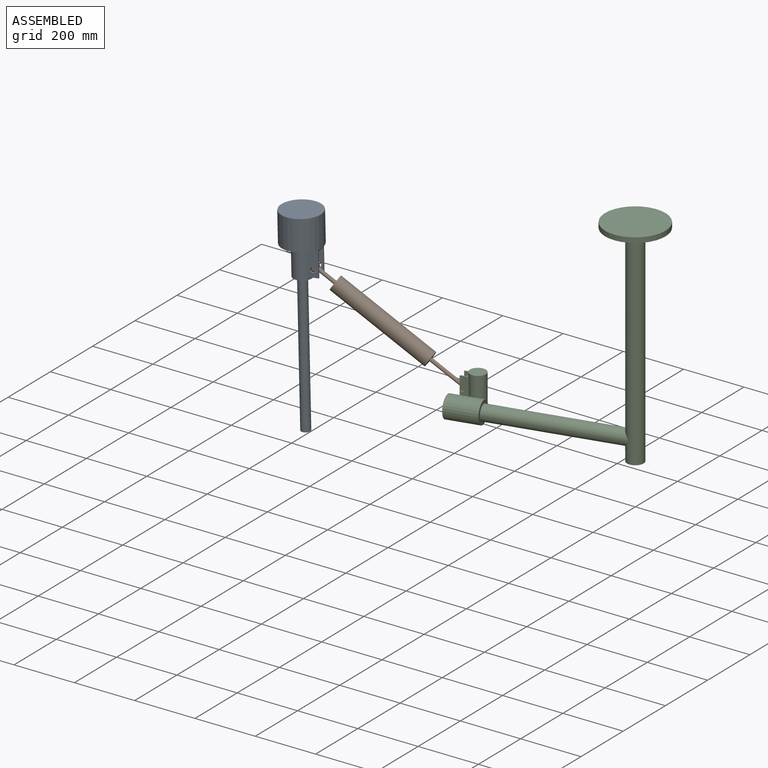
[diagram: assembled view]
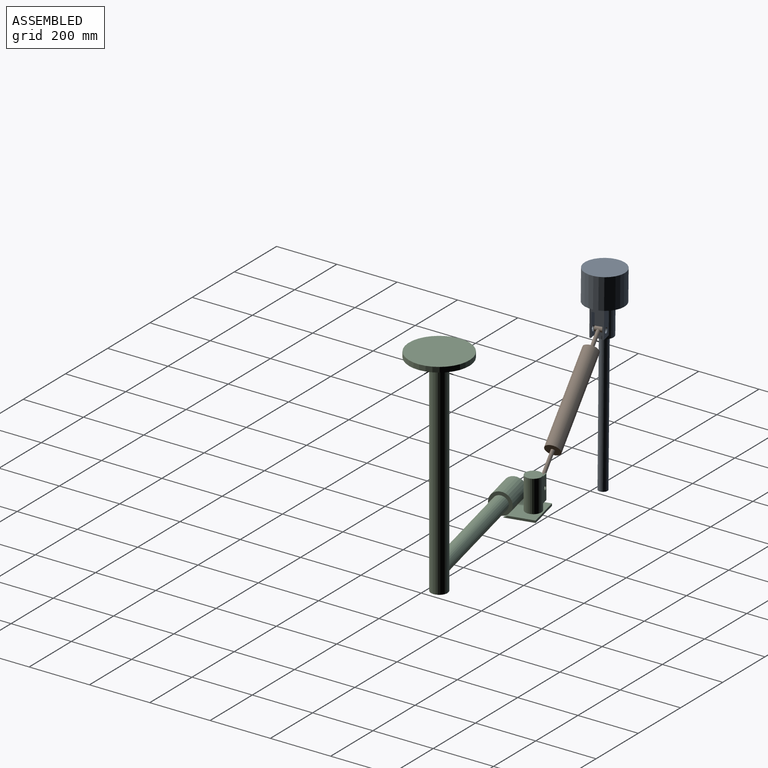
[diagram: assembled view, second angle]
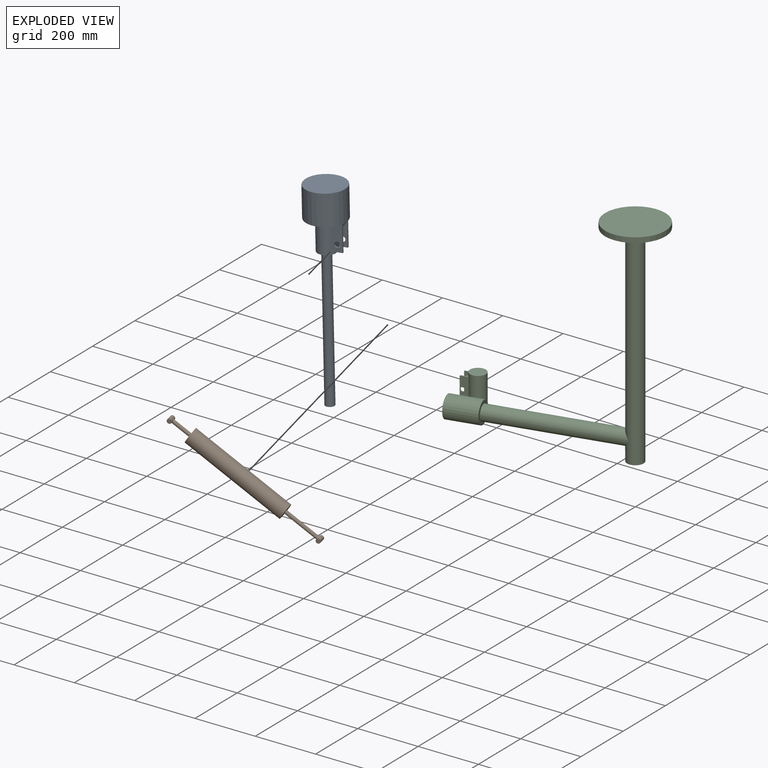
[diagram: exploded view]
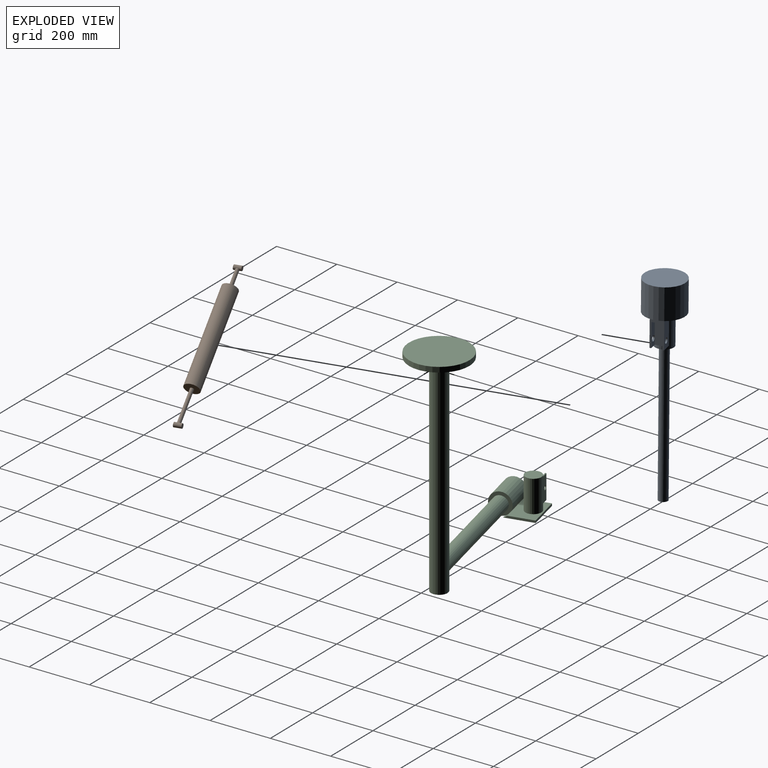
[diagram: exploded view, second angle]
ASSEMBLY  parts=3 mates=2
PART A: 17 faces, bbox 130x130x660 mm
  f0: plane 42.74x34.87mm, normal (0,0,-1), area 408.2mm2, adj f4,f8,f9,f10,f11,f12,f14
  f1: cylinder r=65mm len=130mm, axis (0,0,1), area 40840.7mm2, adj f2,f3
  f2: plane 130x130mm, normal (0,0,-1), area 9219.2mm2, adj f1,f4,f8,f9,f10
  f3: plane 130x130mm, normal (0,0,1), area 13273.2mm2, adj f1
  f4: cylinder r=30mm len=100mm, axis (0,0,1), area 14606.6mm2, adj f0,f2,f5,f8,f9
  f5: plane 60x60mm, normal (0,0,-1), area 2120.6mm2, adj f4,f6
  f6: cylinder r=15mm len=460mm, axis (0,0,1), area 43354mm2, adj f5,f7
  f7: plane 30x30mm, normal (0,0,-1), area 706.9mm2, adj f6
  f8: plane 89.2x34.87mm, normal (-1,0,0), area 2861.3mm2, adj f0,f2,f4,f10,f16
  f9: plane 89.2x34.87mm, normal (1,0,0), area 2861.3mm2, adj f0,f2,f4,f10,f15
  f10: plane 89.2x42.74mm, normal (0,-1,0), area 1268.6mm2, adj f0,f2,f8,f9,f11,f12,f13
  f11: plane 77.7x25mm, normal (1,0,0), area 1693.6mm2, adj f0,f10,f13,f14,f16
  f12: plane 77.7x25mm, normal (-1,0,0), area 1693.6mm2, adj f0,f10,f13,f14,f15
  f13: plane 32.74x25mm, normal (0,0,-1), area 818.5mm2, adj f10,f11,f12,f14
  f14: plane 77.7x32.74mm, normal (0,-1,0), area 2543.7mm2, adj f0,f11,f12,f13
  f15: cylinder r=8.9mm len=17.8mm, axis (1,0,0), area 279.6mm2, adj f9,f12
  f16: cylinder r=8.9mm len=17.8mm, axis (1,0,0), area 279.6mm2, adj f8,f11
PART B: 11 faces, bbox 535x50x50 mm
  f0: cylinder r=5.93mm len=115.41mm, axis (-1,0,0), area 4245.3mm2, adj f1,f5
  f1: cylinder r=7.5mm len=25mm, axis (0,1,0), area 1055.7mm2, adj f0,f2,f3
  f2: plane 15x15mm, normal (0,-1,0), area 176.7mm2, adj f1
  f3: plane 15x15mm, normal (0,1,0), area 176.7mm2, adj f1
  f4: cylinder r=25mm len=332mm, axis (-1,0,0), area 52150.4mm2, adj f5,f6
  f5: plane 50x50mm, normal (1,0,0), area 1852.9mm2, adj f0,f4
  f6: plane 50x50mm, normal (-1,0,0), area 1852.9mm2, adj f4,f10
  f7: plane 15x15mm, normal (0,1,0), area 176.7mm2, adj f9
  f8: plane 15x15mm, normal (0,-1,0), area 176.7mm2, adj f9
  f9: cylinder r=7.5mm len=25mm, axis (0,1,0), area 1055.7mm2, adj f7,f8,f10
  f10: cylinder r=5.93mm len=63.41mm, axis (-1,0,0), area 2306.6mm2, adj f6,f9
PART C: 29 faces, bbox 651x208.7x717 mm
  f0: plane 80x4mm, normal (-1,0,0), area 320mm2, adj f1,f21,f23,f25
  f1: plane 36.46x28.4mm, normal (0,0,1), area 296.6mm2, adj f0,f18,f20,f21,f22,f24,f25,f26
  f2: cylinder r=36.2mm len=106mm, axis (1,0,0), area 22655.8mm2, adj f10,f11,f14,f16
  f3: cylinder r=25mm len=433.55mm, axis (1,0,0), area 66709.8mm2, adj f7,f11
  f4: cylinder r=100mm len=200mm, axis (0,0,1), area 10681.4mm2, adj f5,f6
  f5: plane 200x200mm, normal (0,0,-1), area 29040.1mm2, adj f4,f7
  f6: plane 200x200mm, normal (0,0,1), area 31415.9mm2, adj f4
  f7: cylinder r=27.5mm len=700mm, axis (0,0,1), area 118658.8mm2, adj f3,f5,f8
  f8: plane 55x55mm, normal (0,0,-1), area 2375.8mm2, adj f7
  f9: cylinder r=25mm len=71mm, axis (1,0,0), area 11152.7mm2, adj f10,f12
  f10: plane 144.9x72.4mm, normal (-1,0,0), area 2803.6mm2, adj f2,f9,f14,f15,f16
  f11: plane 72.4x72.4mm, normal (1,0,0), area 2153.6mm2, adj f2,f3,f13
  f12: plane 50x50mm, normal (-1,0,0), area 1963.5mm2, adj f9
  f13: cylinder r=36.2mm len=13mm, axis (-1,0,0), area 178.4mm2, adj f11,f14,f16,f17
  f14: plane 119x83.87mm, normal (0,0,1), area 7762.2mm2, adj f2,f10,f13,f15,f17,f18
  f15: plane 119x7.32mm, normal (0,1,0), area 870.9mm2, adj f10,f14,f16,f17
  f16: plane 119x95.38mm, normal (0,0,-1), area 11350mm2, adj f2,f10,f13,f15,f17
  f17: plane 95.38x7.32mm, normal (1,0,0), area 650mm2, adj f13,f14,f15,f16
  f18: cylinder r=26.57mm len=106mm, axis (0,0,-1), area 14473.2mm2, adj f1,f14,f19,f20,f21,f23
  f19: plane 53.14x53.14mm, normal (0,0,1), area 2217.8mm2, adj f18
  f20: plane 80x28.4mm, normal (0,1,0), area 2122.9mm2, adj f1,f18,f22,f23,f28
  f21: plane 80x26.11mm, normal (0,-1,0), area 1939.7mm2, adj f0,f1,f18,f23,f27
  f22: plane 80x4mm, normal (-1,0,0), area 320mm2, adj f1,f20,f23,f24
  f23: plane 36.46x28.4mm, normal (0,0,-1), area 296.6mm2, adj f0,f18,f20,f21,f22,f24,f25,f26
  f24: plane 80x18.08mm, normal (0,-1,0), area 1297mm2, adj f1,f22,f23,f26,f28
  f25: plane 80x18.08mm, normal (0,1,0), area 1297mm2, adj f0,f1,f23,f26,f27
  f26: plane 80x28.46mm, normal (-1,0,0), area 2276.9mm2, adj f1,f23,f24,f25
  f27: cylinder r=6.9mm len=13.8mm, axis (0,-1,0), area 173.4mm2, adj f21,f25
  f28: cylinder r=6.9mm len=13.8mm, axis (0,-1,0), area 173.4mm2, adj f20,f24
PLACE A rot(axis=(-0.01,-0.01,1),103.1deg) t=(-959.4,-142.32,-337.65)mm
PLACE B rot(axis=(-0.11,0.93,0.36),35.5deg) t=(-959.4,-142.32,-337.65)mm
PLACE C rot(axis=(0,0,1),13.1deg) t=(0,0,0)mm
MATE revolute B.f1 <-> C.f27  axis (-0.23,0.97,0) through (-537.61,-31.32,-621.07)mm
MATE revolute B.f9 <-> A.f15  axis (-0.23,0.97,0) through (-959.4,-142.32,-337.65)mm
